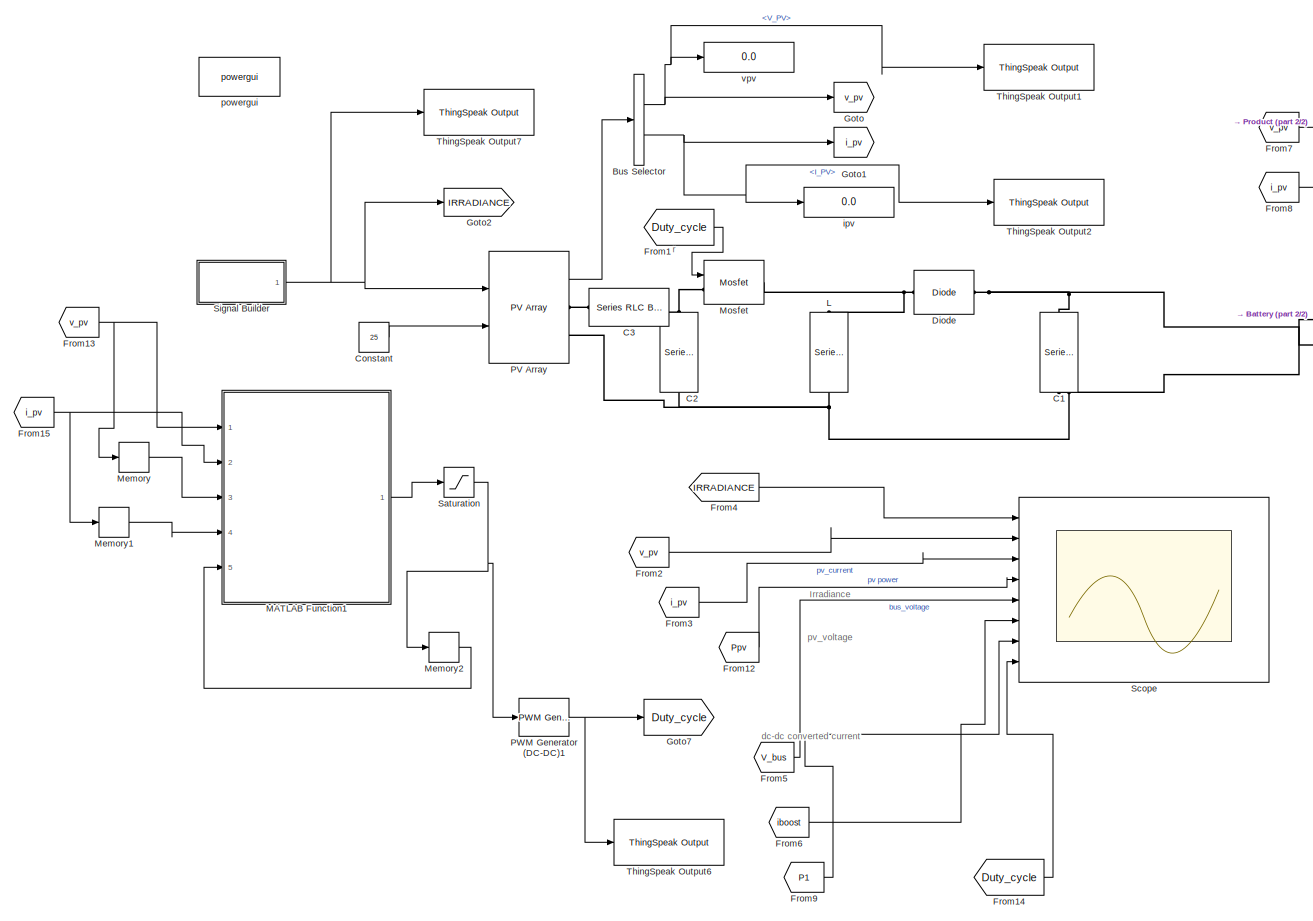
[diagram: root canvas - part 1/2, left side, full height]
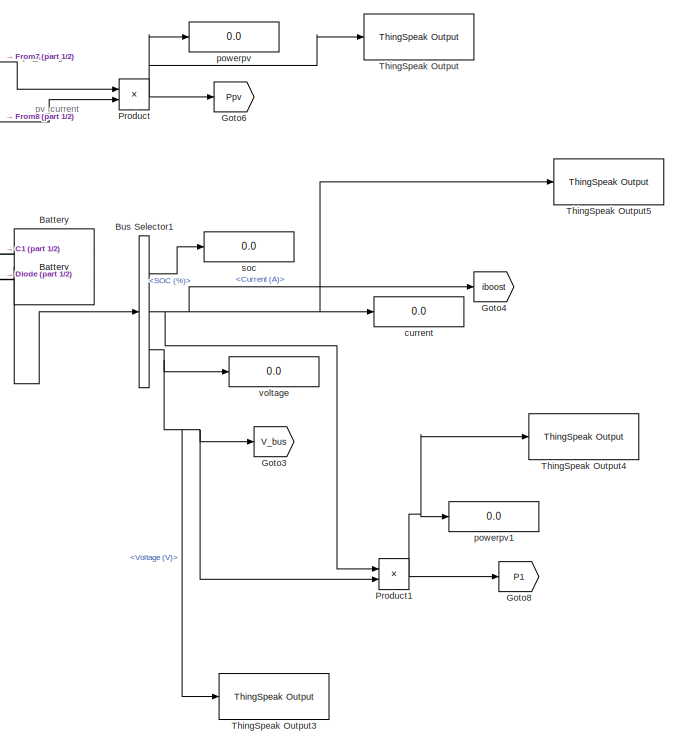
[diagram: root canvas - part 2/2, right side, full height]
MODEL slx_160c3057b6f4
KIND model
CONFIG AbsTol = auto
CONFIG EnableMultiTasking = off
CONFIG FixedStep = auto
CONFIG MaxStep = 1e-4
CONFIG MinStep = auto
CONFIG RelTol = 1e-3
CONFIG SampleTimeConstraint = Unconstrained
CONFIG SolverName = FixedStepAuto
CONFIG StartTime = 0.0
CONFIG StopTime = 1.0
BLOCK [Reference] Battery  REF=spsBatteryLib/Battery
  Ports = [0, 1, 0, 0, 0, 2]
  SourceBlock = spsBatteryLib/Battery
  SourceProductBaseCode = PS
  SourceType = Battery
BLOCK [BusSelector] Bus Selector
  OutputSignals = V_PV,I_PV
  Ports = [1, 2]
BLOCK [BusSelector] Bus Selector1
  OutputSignals = SOC (%),Current (A),Voltage (V)
  Ports = [1, 3]
BLOCK [Reference] C1  REF=spsSeriesRLCBranchLib/Series RLC Branch
  NameLocation = left
  Ports = [0, 0, 0, 0, 0, 1, 1]
  SourceBlock = spsSeriesRLCBranchLib/Series RLC Branch
  SourceProductBaseCode = PS
  SourceType = Series RLC Branch
BLOCK [Reference] C2  REF=spsSeriesRLCBranchLib/Series RLC Branch
  NameLocation = left
  Ports = [0, 0, 0, 0, 0, 1, 1]
  SourceBlock = spsSeriesRLCBranchLib/Series RLC Branch
  SourceProductBaseCode = PS
  SourceType = Series RLC Branch
BLOCK [Reference] C3  REF=spsSeriesRLCBranchLib/Series RLC Branch
  NameLocation = top
  Ports = [0, 0, 0, 0, 0, 1, 1]
  SourceBlock = spsSeriesRLCBranchLib/Series RLC Branch
  SourceProductBaseCode = PS
  SourceType = Series RLC Branch
BLOCK [Constant] Constant
  Value = 25
BLOCK [Reference] Diode  REF=spsDiodeLib/Diode
  NameLocation = top
  Ports = [0, 0, 0, 0, 0, 1, 1]
  SourceBlock = spsDiodeLib/Diode
  SourceProductBaseCode = PS
  SourceType = Diode
BLOCK [From] From1
  GotoTag = Duty_cycle
  TagVisibility = global
BLOCK [From] From12
  GotoTag = Ppv
  TagVisibility = global
BLOCK [From] From13
  GotoTag = v_pv
  TagVisibility = global
BLOCK [From] From14
  GotoTag = Duty_cycle
  TagVisibility = global
BLOCK [From] From15
  GotoTag = i_pv
  TagVisibility = global
BLOCK [From] From2
  GotoTag = v_pv
  TagVisibility = global
BLOCK [From] From3
  GotoTag = i_pv
  TagVisibility = global
BLOCK [From] From4
  GotoTag = IRRADIANCE
BLOCK [From] From5
  GotoTag = V_bus
  TagVisibility = global
BLOCK [From] From6
  GotoTag = iboost
  TagVisibility = global
BLOCK [From] From7
  GotoTag = v_pv
  TagVisibility = global
BLOCK [From] From8
  GotoTag = i_pv
  TagVisibility = global
BLOCK [From] From9
  GotoTag = P1
  TagVisibility = global
BLOCK [Goto] Goto
  GotoTag = v_pv
  TagVisibility = global
BLOCK [Goto] Goto1
  GotoTag = i_pv
  TagVisibility = global
BLOCK [Goto] Goto2
  GotoTag = IRRADIANCE
BLOCK [Goto] Goto3
  GotoTag = V_bus
  TagVisibility = global
BLOCK [Goto] Goto4
  GotoTag = iboost
  TagVisibility = global
BLOCK [Goto] Goto6
  GotoTag = Ppv
  TagVisibility = global
BLOCK [Goto] Goto7
  GotoTag = Duty_cycle
  TagVisibility = global
BLOCK [Goto] Goto8
  GotoTag = P1
  TagVisibility = global
BLOCK [Reference] L  REF=spsSeriesRLCBranchLib/Series RLC Branch
  NameLocation = left
  Ports = [0, 0, 0, 0, 0, 1, 1]
  SourceBlock = spsSeriesRLCBranchLib/Series RLC Branch
  SourceProductBaseCode = PS
  SourceType = Series RLC Branch
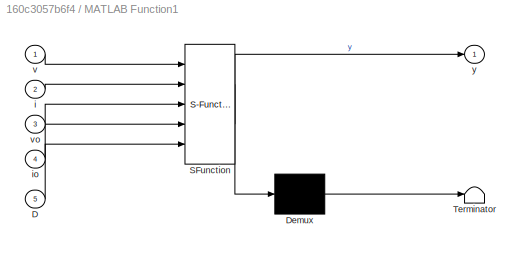
BLOCK [SubSystem] MATLAB Function1
  ErrorFcn = Stateflow.Translate.translate
  PermitHierarchicalResolution = ExplicitOnly
  Ports = [5, 1]
  RequestExecContextInheritance = off
  SFBlockType = MATLAB Function
  TreatAsAtomicUnit = on
BLOCK [Demux] MATLAB Function1/ Demux 
  Outputs = 1
  Ports = [1, 1]
BLOCK [S-Function] MATLAB Function1/ SFunction 
  EnableBusSupport = on
  FunctionName = sf_sfun
  PortCounts = [5 2]
  Ports = [5, 2]
  SFcnIsStateOwnerBlock = off
  SFunctionDeploymentMode = off
  Tag = Stateflow S-Function 1
BLOCK [Terminator] MATLAB Function1/ Terminator 
BLOCK [Inport] MATLAB Function1/D
  Port = 5
BLOCK [Inport] MATLAB Function1/i
  Port = 2
BLOCK [Inport] MATLAB Function1/io
  Port = 4
BLOCK [Inport] MATLAB Function1/v
BLOCK [Inport] MATLAB Function1/vo
  Port = 3
BLOCK [Outport] MATLAB Function1/y
BLOCK [Memory] Memory
BLOCK [Memory] Memory1
BLOCK [Memory] Memory2
BLOCK [Reference] Mosfet  REF=spsMosfetLib/Mosfet
  Ports = [1, 0, 0, 0, 0, 1, 1]
  SourceBlock = spsMosfetLib/Mosfet
  SourceProductBaseCode = PS
  SourceType = Mosfet
BLOCK [Reference] PV Array  REF=spsPVArrayLib/PV Array
  Ports = [2, 1, 0, 0, 0, 0, 2]
  SourceBlock = spsPVArrayLib/PV Array
  SourceProductBaseCode = PS
  SourceType = PV array
BLOCK [Reference] PWM Generator (DC-DC)1  REF=spsPWMGeneratorDCDCLib/PWM Generator
(DC-DC)
  Ports = [1, 1]
  SourceBlock = spsPWMGeneratorDCDCLib/PWM Generator\n(DC-DC)
  SourceProductBaseCode = PS
  SourceType = PWM Generator (DC-DC)
BLOCK [Product] Product
  Ports = [2, 1]
BLOCK [Product] Product1
  Ports = [2, 1]
BLOCK [Saturate] Saturation
  LowerLimit = 0
  UpperLimit = 0.9
BLOCK [Scope] Scope
  Floating = off
  NumInputPorts = 8
  Ports = [8]
  ScopeSpecificationString = Simulink.scopes.TimeScopeBlockCfg('CurrentConfiguration', extmgr.ConfigurationSet(extmgr.Configuration('Core','General UI',true),extmgr.Configuration('Core','Source UI',true),extmgr.Configuration('Sources','WiredSimulink',true),extmgr.Configuration('Visuals','Time Domain',true,'SerializedDisplays',{struct('MinYLimReal','-97.5','MaxYLimReal','1127.5','YLabelReal','','MinYLimMag','0.00000','MaxYLimM...<+6141ch>
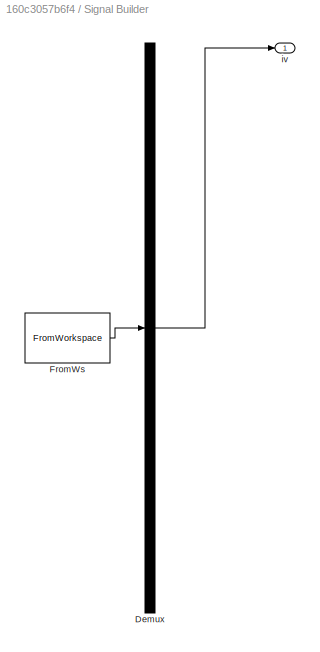
BLOCK [SubSystem] Signal Builder
  ClipboardFcn = sigbuilder_block('clipboard');
  CloseFcn = sigbuilder_block('close');
  ContinueFcn = sigbuilder_block('continue');
  CopyFcn = sigbuilder_block('copy');
  DeleteFcn = sigbuilder_block('delete');
  LoadFcn = sigbuilder_block('load');
  MaskHideContents = on
  ModelCloseFcn = sigbuilder_block('modelClose');
  NameChangeFcn = sigbuilder_block('namechange');
  OpenFcn = sigbuilder_block('open',[437.6 199.2 550.4 400 ]);
  PauseFcn = sigbuilder_block('pause');
  Ports = [0, 1]
  PreSaveFcn = sigbuilder_block('preSave');
  RequestExecContextInheritance = off
  StartFcn = sigbuilder_block('start');
  StopFcn = sigbuilder_block('stop');
  Tag = STV Subsys
BLOCK [Demux] Signal Builder/Demux
  DisplayOption = none
  Outputs = 1
  Ports = [1, 1]
  Tag = STV Demux
BLOCK [FromWorkspace] Signal Builder/FromWs
  Tag = STV FromWs
  VariableName = tuvar
BLOCK [Outport] Signal Builder/iv
  Tag = STV Outport
BLOCK [Reference] ThingSpeak Output  REF=sldrtlib/Internet of Things/ThingSpeak Output
  Ports = [1]
  SourceBlock = sldrtlib/Internet of Things/ThingSpeak Output
  SourceProductBaseCode = WT
  SourceType = Simulink Desktop Real-Time ThingSpeak Output
BLOCK [Reference] ThingSpeak Output1  REF=sldrtlib/Internet of Things/ThingSpeak Output
  Ports = [1]
  SourceBlock = sldrtlib/Internet of Things/ThingSpeak Output
  SourceProductBaseCode = WT
  SourceType = Simulink Desktop Real-Time ThingSpeak Output
BLOCK [Reference] ThingSpeak Output2  REF=sldrtlib/Internet of Things/ThingSpeak Output
  Ports = [1]
  SourceBlock = sldrtlib/Internet of Things/ThingSpeak Output
  SourceProductBaseCode = WT
  SourceType = Simulink Desktop Real-Time ThingSpeak Output
BLOCK [Reference] ThingSpeak Output3  REF=sldrtlib/Internet of Things/ThingSpeak Output
  Ports = [1]
  SourceBlock = sldrtlib/Internet of Things/ThingSpeak Output
  SourceProductBaseCode = WT
  SourceType = Simulink Desktop Real-Time ThingSpeak Output
BLOCK [Reference] ThingSpeak Output4  REF=sldrtlib/Internet of Things/ThingSpeak Output
  Ports = [1]
  SourceBlock = sldrtlib/Internet of Things/ThingSpeak Output
  SourceProductBaseCode = WT
  SourceType = Simulink Desktop Real-Time ThingSpeak Output
BLOCK [Reference] ThingSpeak Output5  REF=sldrtlib/Internet of Things/ThingSpeak Output
  Ports = [1]
  SourceBlock = sldrtlib/Internet of Things/ThingSpeak Output
  SourceProductBaseCode = WT
  SourceType = Simulink Desktop Real-Time ThingSpeak Output
BLOCK [Reference] ThingSpeak Output6  REF=sldrtlib/Internet of Things/ThingSpeak Output
  Ports = [1]
  SourceBlock = sldrtlib/Internet of Things/ThingSpeak Output
  SourceProductBaseCode = WT
  SourceType = Simulink Desktop Real-Time ThingSpeak Output
BLOCK [Reference] ThingSpeak Output7  REF=sldrtlib/Internet of Things/ThingSpeak Output
  Ports = [1]
  SourceBlock = sldrtlib/Internet of Things/ThingSpeak Output
  SourceProductBaseCode = WT
  SourceType = Simulink Desktop Real-Time ThingSpeak Output
BLOCK [Display] current
  Decimation = 1
  Ports = [1]
BLOCK [Display] ipv
  Decimation = 1
  Ports = [1]
BLOCK [Reference] powergui  REF=spspowerguiLib/powergui
  Ports = []
  Priority = 1
  SourceBlock = spspowerguiLib/powergui
  SourceProductBaseCode = PS
  SourceType = PSB option menu block
BLOCK [Display] powerpv
  Decimation = 1
  Ports = [1]
BLOCK [Display] powerpv1
  Decimation = 1
  Ports = [1]
BLOCK [Display] soc
  Decimation = 1
  Ports = [1]
BLOCK [Display] voltage 
  Decimation = 1
  Ports = [1]
BLOCK [Display] vpv
  Decimation = 1
  Ports = [1]
ANNOTATION (root): Irradiance
ANNOTATION (root): dc-dc converted current
ANNOTATION (root): pv_current
ANNOTATION (root): pv_voltage
ANNOTATION (root): r
LINE Battery:1 -> Bus Selector1:1
LINE Bus Selector1:1 -> soc:1
NET Bus Selector1:2 -> Goto4:1, Product1:1, ThingSpeak Output5:1, current:1
NET Bus Selector1:3 -> Goto3:1, Product1:2, ThingSpeak Output3:1, voltage :1
NET Bus Selector:1 -> Goto:1, ThingSpeak Output1:1, vpv:1
NET Bus Selector:2 -> Goto1:1, ThingSpeak Output2:1, ipv:1
LINE Constant:1 -> PV Array:2
LINE From12:1 -> Scope:4
NET From13:1 -> MATLAB Function1:1, Memory:1
LINE From14:1 -> Scope:8
NET From15:1 -> MATLAB Function1:2, Memory1:1
LINE From1:1 -> Mosfet:1
LINE From2:1 -> Scope:2
LINE From3:1 -> Scope:3
LINE From4:1 -> Scope:1
LINE From5:1 -> Scope:5
LINE From6:1 -> Scope:6
LINE From7:1 -> Product:1
LINE From8:1 -> Product:2
LINE From9:1 -> Scope:7
LINE MATLAB Function1:1 -> Saturation:1
LINE Memory1:1 -> MATLAB Function1:4
LINE Memory2:1 -> MATLAB Function1:5
LINE Memory:1 -> MATLAB Function1:3
LINE PV Array:1 -> Bus Selector:1
NET PWM Generator (DC-DC)1:1 -> Goto7:1, ThingSpeak Output6:1
NET Product1:1 -> Goto8:1, ThingSpeak Output4:1, powerpv1:1
NET Product:1 -> Goto6:1, ThingSpeak Output:1, powerpv:1
NET Saturation:1 -> Memory2:1, PWM Generator (DC-DC)1:1
NET Signal Builder:1 -> Goto2:1, PV Array:1, ThingSpeak Output7:1
PNET net1: Battery:LConn1 -- C1:RConn1 -- C2:RConn1 -- L:RConn1 -- PV Array:RConn2
PNET net2: Battery:LConn2 -- C1:LConn1 -- Diode:LConn1
PNET net3: C2:LConn1 -- C3:LConn1 -- Mosfet:LConn1
PLINE C3:RConn1 -- PV Array:RConn1
PNET net4: Diode:RConn1 -- L:LConn1 -- Mosfet:RConn1
note: NET lines group one-source signal fan-out (src -> all destinations, sorted); 1:1 wires keep LINE; PNET lines group multi-terminal physical nets as a canonical sorted terminal list (undirected conserving connections); 2-terminal nets keep the pairwise PLINE form
CHART MATLAB Function1 states=1 transitions=1
  STATE_LABEL 'eML_blk_kernel()'
  STATE_LABEL 'SCRIPT:\nfunction y = inc(v,i,vo,io,D)\nm=0.6;\ndv=v-vo;\ndi=i-io;\nd=0.00004;\nif dv==0\n    if di==0\n        m=D;\n    else\n        if di>0\n            m=D-d;\n        else\n             m=D+d;\n        end\n    end\nelse\n     if di/dv==-(i/v)\n        m=D;\n    else\n        if di/dv> -(i/v)\n            m=D-d;\n        else\n             m=D+d;\n        end\n     end\nend\ny=m;\nend\n            \n\n\n'
CHART  states=0 transitions=0
